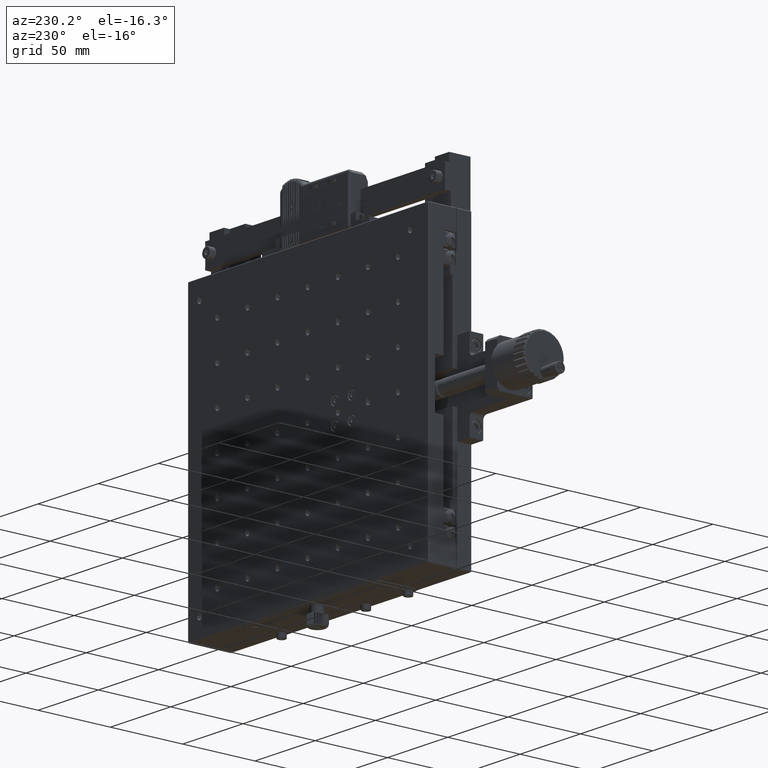
[diagram: clean part render]
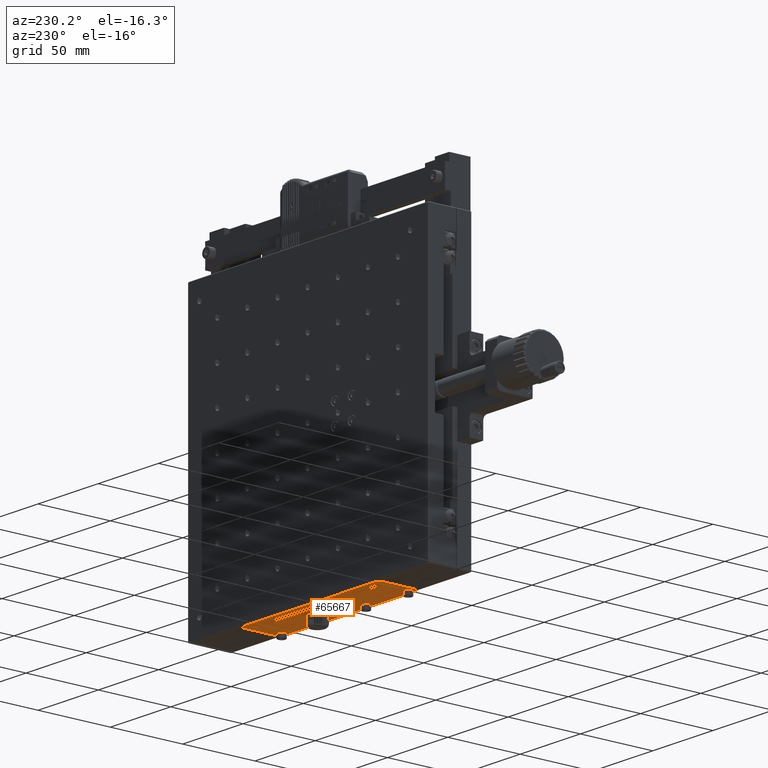
[diagram: same view with one face highlighted and labeled with its STEP entity id]
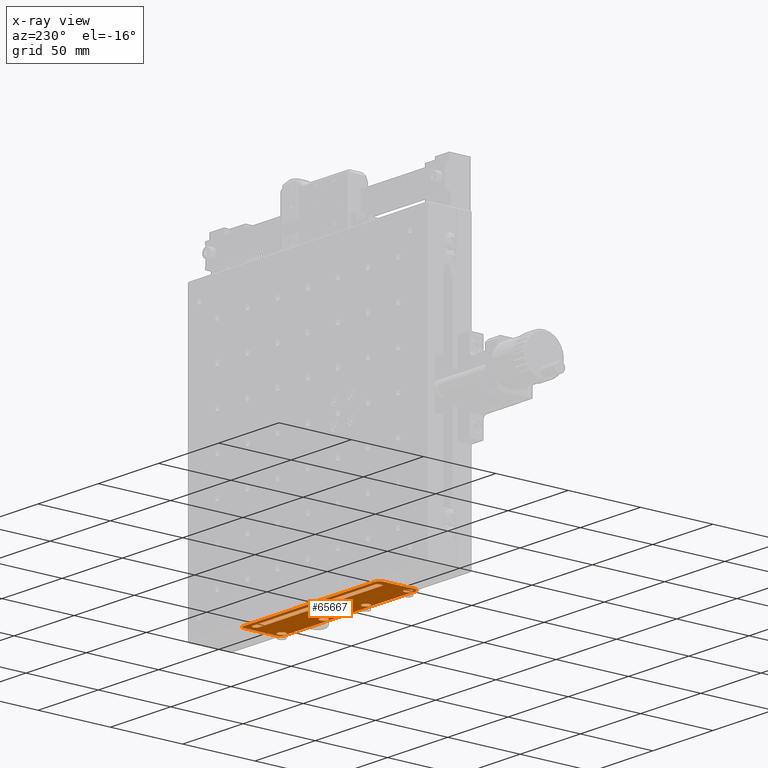
[diagram: x-ray of the same camera — body ghosted, the highlighted face saturated]
A machine part, auxiliary view. The second image highlights one B-rep face of the part: STEP entity #65667.
The next image is the same camera in x-ray: the body ghosted, the highlighted face saturated — about 1% of this face is hidden behind the body in this view.
In plain terms, the highlighted planar face has unit normal (0, 0, 1).
Its self-contained STEP definition (entity closure, byte-faithful):
#421 = DIRECTION ( 'NONE',  ( -1.000000000000000000, -0.000000000000000000, 0.000000000000000000 ) ) ;
#446 = FACE_BOUND ( 'NONE', #554, .T. ) ;
#554 = EDGE_LOOP ( 'NONE', ( #2518 ) ) ;
#623 = CARTESIAN_POINT ( 'NONE',  ( -42.50000000000000000, 4.000000000000000000, -100.5000000000000000 ) ) ;
#1241 = CARTESIAN_POINT ( 'NONE',  ( -49.00000000000000000, 23.50000000000000000, -100.5000000000000000 ) ) ;
#1576 = DIRECTION ( 'NONE',  ( 0.000000000000000000, 0.000000000000000000, 1.000000000000000000 ) ) ;
#1592 = CARTESIAN_POINT ( 'NONE',  ( -49.00000000000000000, 21.35000000000000142, -100.5000000000000000 ) ) ;
#1625 = EDGE_CURVE ( 'NONE', #9190, #18876, #30797, .T. ) ;
#1737 = DIRECTION ( 'NONE',  ( 1.000000000000000000, 0.000000000000000000, 0.000000000000000000 ) ) ;
#2121 = EDGE_LOOP ( 'NONE', ( #12843 ) ) ;
#2267 = CARTESIAN_POINT ( 'NONE',  ( -45.50000000000000000, 29.00000000000000000, -100.5000000000000000 ) ) ;
#2342 = DIRECTION ( 'NONE',  ( -0.000000000000000000, -1.000000000000000000, 0.000000000000000000 ) ) ;
#2345 = CARTESIAN_POINT ( 'NONE',  ( -157.5000000000000284, 4.000000000000015987, -100.5000000000000000 ) ) ;
#2518 = ORIENTED_EDGE ( 'NONE', *, *, #49957, .F. ) ;
#4662 = CIRCLE ( 'NONE', #51023, 2.750000000000002665 ) ;
#5630 = VECTOR ( 'NONE', #2342, 1000.000000000000000 ) ;
#5721 = CIRCLE ( 'NONE', #35928, 2.750000000000002665 ) ;
#5969 = DIRECTION ( 'NONE',  ( 0.000000000000000000, 0.000000000000000000, 1.000000000000000000 ) ) ;
#7735 = DIRECTION ( 'NONE',  ( 1.000000000000000000, 0.000000000000000000, 0.000000000000000000 ) ) ;
#8091 = CIRCLE ( 'NONE', #45796, 3.000000000000002665 ) ;
#9190 = VERTEX_POINT ( 'NONE', #23058 ) ;
#9204 = CIRCLE ( 'NONE', #39371, 2.149999999999999023 ) ;
#9928 = FACE_BOUND ( 'NONE', #61990, .T. ) ;
#10258 = PLANE ( 'NONE',  #43066 ) ;
#10442 = EDGE_CURVE ( 'NONE', #24005, #15752, #66355, .T. ) ;
#10647 = CARTESIAN_POINT ( 'NONE',  ( -45.50000000000000000, 29.00000000000000000, -100.5000000000000000 ) ) ;
#10775 = DIRECTION ( 'NONE',  ( -0.000000000000000000, 1.000000000000000000, 0.000000000000000000 ) ) ;
#11230 = CARTESIAN_POINT ( 'NONE',  ( -42.50000000000000000, 3.999999999999994671, -100.5000000000000000 ) ) ;
#11941 = EDGE_CURVE ( 'NONE', #22360, #22360, #58099, .T. ) ;
#12183 = DIRECTION ( 'NONE',  ( 0.000000000000000000, 0.000000000000000000, 1.000000000000000000 ) ) ;
#12333 = AXIS2_PLACEMENT_3D ( 'NONE', #46045, #14323, #14663 ) ;
#12395 = CARTESIAN_POINT ( 'NONE',  ( -154.5000000000000000, 4.000000000000030198, -100.5000000000000000 ) ) ;
#12843 = ORIENTED_EDGE ( 'NONE', *, *, #51512, .F. ) ;
#13325 = CARTESIAN_POINT ( 'NONE',  ( -44.75000000000000000, 4.500000000000000888, -100.5000000000000000 ) ) ;
#13658 = ORIENTED_EDGE ( 'NONE', *, *, #56724, .F. ) ;
#14323 = DIRECTION ( 'NONE',  ( 0.000000000000000000, 0.000000000000000000, 1.000000000000000000 ) ) ;
#14663 = DIRECTION ( 'NONE',  ( 1.000000000000000000, 0.000000000000000000, 0.000000000000000000 ) ) ;
#14991 = DIRECTION ( 'NONE',  ( 0.000000000000000000, 0.000000000000000000, 1.000000000000000000 ) ) ;
#15534 = EDGE_CURVE ( 'NONE', #37324, #9190, #9204, .T. ) ;
#15752 = VERTEX_POINT ( 'NONE', #40331 ) ;
#16627 = EDGE_CURVE ( 'NONE', #36687, #36582, #36226, .T. ) ;
#16840 = EDGE_LOOP ( 'NONE', ( #62305, #28367, #32715, #13658, #22690, #19284, #33790, #62057 ) ) ;
#16891 = CARTESIAN_POINT ( 'NONE',  ( -157.5000000000000000, 26.00000000000000355, -100.5000000000000000 ) ) ;
#17383 = CARTESIAN_POINT ( 'NONE',  ( -151.0000000000000000, 25.64999999999999858, -100.5000000000000000 ) ) ;
#17404 = VERTEX_POINT ( 'NONE', #11230 ) ;
#17661 = ORIENTED_EDGE ( 'NONE', *, *, #11941, .F. ) ;
#18490 = DIRECTION ( 'NONE',  ( -0.000000000000000000, -0.000000000000000000, -1.000000000000000000 ) ) ;
#18775 = CIRCLE ( 'NONE', #12333, 2.999999999999988898 ) ;
#18832 = CIRCLE ( 'NONE', #59781, 3.000000000000030198 ) ;
#18876 = VERTEX_POINT ( 'NONE', #17383 ) ;
#19284 = ORIENTED_EDGE ( 'NONE', *, *, #16627, .F. ) ;
#19700 = FACE_BOUND ( 'NONE', #2121, .T. ) ;
#19960 = VERTEX_POINT ( 'NONE', #28818 ) ;
#20040 = FACE_BOUND ( 'NONE', #31781, .T. ) ;
#20114 = VERTEX_POINT ( 'NONE', #29240 ) ;
#20907 = CARTESIAN_POINT ( 'NONE',  ( -154.5000000000000000, 1.000000000000000000, -100.5000000000000000 ) ) ;
#21022 = VERTEX_POINT ( 'NONE', #44070 ) ;
#21144 = AXIS2_PLACEMENT_3D ( 'NONE', #12395, #5969, #32952 ) ;
#21783 = DIRECTION ( 'NONE',  ( 1.000000000000000000, 0.000000000000000000, 0.000000000000000000 ) ) ;
#22360 = VERTEX_POINT ( 'NONE', #52755 ) ;
#22380 = CIRCLE ( 'NONE', #27822, 2.750000000000002665 ) ;
#22623 = DIRECTION ( 'NONE',  ( 0.000000000000000000, 0.000000000000000000, 1.000000000000000000 ) ) ;
#22690 = ORIENTED_EDGE ( 'NONE', *, *, #28038, .F. ) ;
#22922 = ORIENTED_EDGE ( 'NONE', *, *, #36956, .T. ) ;
#23058 = CARTESIAN_POINT ( 'NONE',  ( -49.00000000000000000, 25.64999999999999858, -100.5000000000000000 ) ) ;
#24005 = VERTEX_POINT ( 'NONE', #2267 ) ;
#24768 = FACE_OUTER_BOUND ( 'NONE', #16840, .T. ) ;
#25642 = CARTESIAN_POINT ( 'NONE',  ( -151.0000000000000000, 23.50000000000000000, -100.5000000000000000 ) ) ;
#26686 = LINE ( 'NONE', #63173, #47479 ) ;
#27513 = CARTESIAN_POINT ( 'NONE',  ( -82.50000000000000000, 4.500000000000000888, -100.5000000000000000 ) ) ;
#27822 = AXIS2_PLACEMENT_3D ( 'NONE', #65406, #18490, #43800 ) ;
#28038 = EDGE_CURVE ( 'NONE', #36582, #19960, #57123, .T. ) ;
#28367 = ORIENTED_EDGE ( 'NONE', *, *, #34658, .F. ) ;
#28818 = CARTESIAN_POINT ( 'NONE',  ( -45.50000000000000000, 1.000000000000000000, -100.5000000000000000 ) ) ;
#29240 = CARTESIAN_POINT ( 'NONE',  ( -149.7500000000000000, 4.500000000000000888, -100.5000000000000000 ) ) ;
#29912 = VECTOR ( 'NONE', #10775, 1000.000000000000000 ) ;
#30797 = LINE ( 'NONE', #66287, #36662 ) ;
#31039 = DIRECTION ( 'NONE',  ( 1.000000000000000000, 0.000000000000000000, 0.000000000000000000 ) ) ;
#31163 = CARTESIAN_POINT ( 'NONE',  ( -154.5000000000000000, 26.00000000000000355, -100.5000000000000000 ) ) ;
#31781 = EDGE_LOOP ( 'NONE', ( #17661 ) ) ;
#32076 = ORIENTED_EDGE ( 'NONE', *, *, #41809, .F. ) ;
#32574 = DIRECTION ( 'NONE',  ( -0.000000000000000000, -0.000000000000000000, -1.000000000000000000 ) ) ;
#32715 = ORIENTED_EDGE ( 'NONE', *, *, #62455, .F. ) ;
#32952 = DIRECTION ( 'NONE',  ( 1.000000000000000000, 0.000000000000000000, 0.000000000000000000 ) ) ;
#33233 = VERTEX_POINT ( 'NONE', #48777 ) ;
#33790 = ORIENTED_EDGE ( 'NONE', *, *, #48726, .F. ) ;
#33928 = CARTESIAN_POINT ( 'NONE',  ( -47.50000000000000000, 4.500000000000000888, -100.5000000000000000 ) ) ;
#34658 = EDGE_CURVE ( 'NONE', #21022, #24005, #8091, .T. ) ;
#34727 = EDGE_CURVE ( 'NONE', #15752, #49590, #18832, .T. ) ;
#35928 = AXIS2_PLACEMENT_3D ( 'NONE', #27513, #32574, #21783 ) ;
#36226 = CIRCLE ( 'NONE', #21144, 3.000000000000030198 ) ;
#36273 = DIRECTION ( 'NONE',  ( -1.000000000000000000, -0.000000000000000000, 0.000000000000000000 ) ) ;
#36538 = VECTOR ( 'NONE', #36273, 1000.000000000000000 ) ;
#36582 = VERTEX_POINT ( 'NONE', #20907 ) ;
#36662 = VECTOR ( 'NONE', #421, 1000.000000000000000 ) ;
#36687 = VERTEX_POINT ( 'NONE', #2345 ) ;
#36956 = EDGE_CURVE ( 'NONE', #18876, #60452, #54695, .T. ) ;
#37061 = EDGE_LOOP ( 'NONE', ( #32076 ) ) ;
#37324 = VERTEX_POINT ( 'NONE', #1592 ) ;
#39371 = AXIS2_PLACEMENT_3D ( 'NONE', #1241, #1576, #48504 ) ;
#39670 = DIRECTION ( 'NONE',  ( 1.000000000000000000, 0.000000000000000000, 0.000000000000000000 ) ) ;
#40331 = CARTESIAN_POINT ( 'NONE',  ( -154.5000000000000000, 29.00000000000001776, -100.5000000000000000 ) ) ;
#40823 = AXIS2_PLACEMENT_3D ( 'NONE', #59382, #47575, #7735 ) ;
#41809 = EDGE_CURVE ( 'NONE', #20114, #20114, #22380, .T. ) ;
#42560 = CARTESIAN_POINT ( 'NONE',  ( -154.5000000000000000, 1.000000000000000000, -100.5000000000000000 ) ) ;
#42813 = ORIENTED_EDGE ( 'NONE', *, *, #44479, .T. ) ;
#43066 = AXIS2_PLACEMENT_3D ( 'NONE', #31163, #14991, #62236 ) ;
#43800 = DIRECTION ( 'NONE',  ( 1.000000000000000000, 0.000000000000000000, 0.000000000000000000 ) ) ;
#44070 = CARTESIAN_POINT ( 'NONE',  ( -42.50000000000000000, 26.00000000000000355, -100.5000000000000000 ) ) ;
#44479 = EDGE_CURVE ( 'NONE', #60452, #37324, #26686, .T. ) ;
#44480 = CARTESIAN_POINT ( 'NONE',  ( -157.5000000000000000, 26.00000000000000355, -100.5000000000000000 ) ) ;
#45332 = VECTOR ( 'NONE', #1737, 1000.000000000000000 ) ;
#45796 = AXIS2_PLACEMENT_3D ( 'NONE', #58428, #12183, #52680 ) ;
#46045 = CARTESIAN_POINT ( 'NONE',  ( -45.50000000000000000, 3.999999999999989786, -100.5000000000000000 ) ) ;
#47300 = DIRECTION ( 'NONE',  ( 1.000000000000000000, 0.000000000000000000, 0.000000000000000000 ) ) ;
#47479 = VECTOR ( 'NONE', #47300, 1000.000000000000000 ) ;
#47575 = DIRECTION ( 'NONE',  ( -0.000000000000000000, -0.000000000000000000, -1.000000000000000000 ) ) ;
#48504 = DIRECTION ( 'NONE',  ( 1.000000000000000000, 0.000000000000000000, 0.000000000000000000 ) ) ;
#48726 = EDGE_CURVE ( 'NONE', #49590, #36687, #64114, .T. ) ;
#48777 = CARTESIAN_POINT ( 'NONE',  ( -79.75000000000000000, 4.500000000000000888, -100.5000000000000000 ) ) ;
#49136 = DIRECTION ( 'NONE',  ( -0.000000000000000000, -0.000000000000000000, -1.000000000000000000 ) ) ;
#49590 = VERTEX_POINT ( 'NONE', #16891 ) ;
#49957 = EDGE_CURVE ( 'NONE', #33233, #33233, #5721, .T. ) ;
#51023 = AXIS2_PLACEMENT_3D ( 'NONE', #33928, #49136, #39670 ) ;
#51512 = EDGE_CURVE ( 'NONE', #54510, #54510, #4662, .T. ) ;
#51520 = ORIENTED_EDGE ( 'NONE', *, *, #1625, .T. ) ;
#52680 = DIRECTION ( 'NONE',  ( 1.000000000000000000, 0.000000000000000000, 0.000000000000000000 ) ) ;
#52755 = CARTESIAN_POINT ( 'NONE',  ( -114.7500000000000000, 4.500000000000000888, -100.5000000000000000 ) ) ;
#54510 = VERTEX_POINT ( 'NONE', #13325 ) ;
#54597 = CARTESIAN_POINT ( 'NONE',  ( -151.0000000000000000, 21.35000000000000142, -100.5000000000000000 ) ) ;
#54685 = CARTESIAN_POINT ( 'NONE',  ( -154.5000000000000000, 26.00000000000000355, -100.5000000000000000 ) ) ;
#54695 = CIRCLE ( 'NONE', #60083, 2.150000000000012790 ) ;
#56724 = EDGE_CURVE ( 'NONE', #19960, #17404, #18775, .T. ) ;
#56914 = ORIENTED_EDGE ( 'NONE', *, *, #15534, .T. ) ;
#57018 = LINE ( 'NONE', #623, #29912 ) ;
#57123 = LINE ( 'NONE', #42560, #45332 ) ;
#58099 = CIRCLE ( 'NONE', #40823, 2.750000000000002665 ) ;
#58428 = CARTESIAN_POINT ( 'NONE',  ( -45.50000000000000000, 26.00000000000000355, -100.5000000000000000 ) ) ;
#59382 = CARTESIAN_POINT ( 'NONE',  ( -117.5000000000000142, 4.500000000000000888, -100.5000000000000000 ) ) ;
#59735 = DIRECTION ( 'NONE',  ( 1.000000000000000000, 0.000000000000000000, 0.000000000000000000 ) ) ;
#59781 = AXIS2_PLACEMENT_3D ( 'NONE', #54685, #22623, #59735 ) ;
#60083 = AXIS2_PLACEMENT_3D ( 'NONE', #25642, #61106, #31039 ) ;
#60452 = VERTEX_POINT ( 'NONE', #54597 ) ;
#61106 = DIRECTION ( 'NONE',  ( 0.000000000000000000, 0.000000000000000000, 1.000000000000000000 ) ) ;
#61236 = FACE_BOUND ( 'NONE', #37061, .T. ) ;
#61990 = EDGE_LOOP ( 'NONE', ( #22922, #42813, #56914, #51520 ) ) ;
#62057 = ORIENTED_EDGE ( 'NONE', *, *, #34727, .F. ) ;
#62236 = DIRECTION ( 'NONE',  ( 1.000000000000000000, 0.000000000000000000, -0.000000000000000000 ) ) ;
#62305 = ORIENTED_EDGE ( 'NONE', *, *, #10442, .F. ) ;
#62455 = EDGE_CURVE ( 'NONE', #17404, #21022, #57018, .T. ) ;
#63173 = CARTESIAN_POINT ( 'NONE',  ( -151.0000000000000000, 21.35000000000000142, -100.5000000000000000 ) ) ;
#64114 = LINE ( 'NONE', #44480, #5630 ) ;
#65406 = CARTESIAN_POINT ( 'NONE',  ( -152.5000000000000000, 4.500000000000000888, -100.5000000000000000 ) ) ;
#65667 = ADVANCED_FACE ( 'NONE', ( #24768, #9928, #19700, #446, #20040, #61236 ), #10258, .F. ) ;
#66287 = CARTESIAN_POINT ( 'NONE',  ( -49.00000000000000000, 25.64999999999999858, -100.5000000000000000 ) ) ;
#66355 = LINE ( 'NONE', #10647, #36538 ) ;